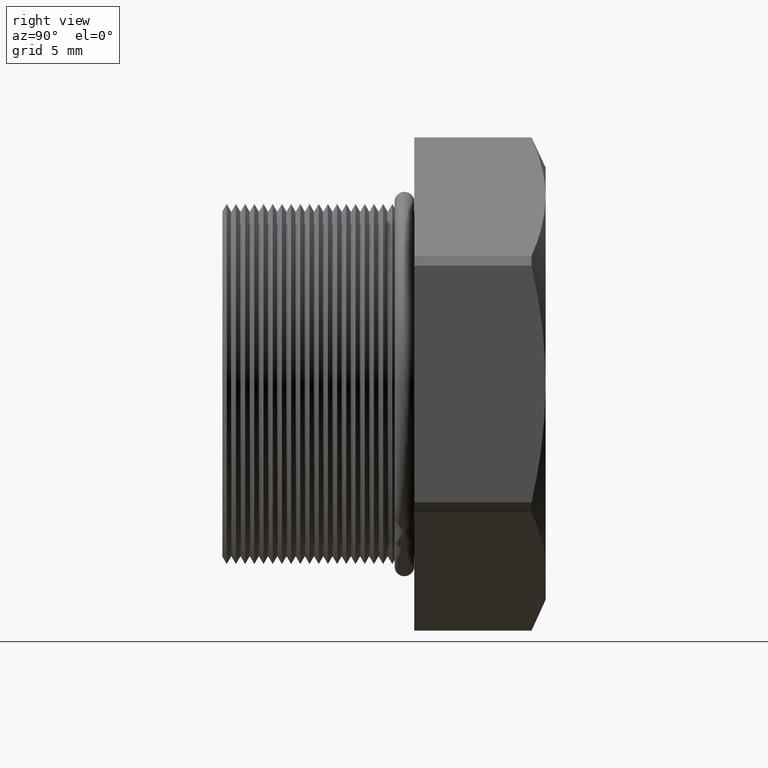
[diagram: clean part render]
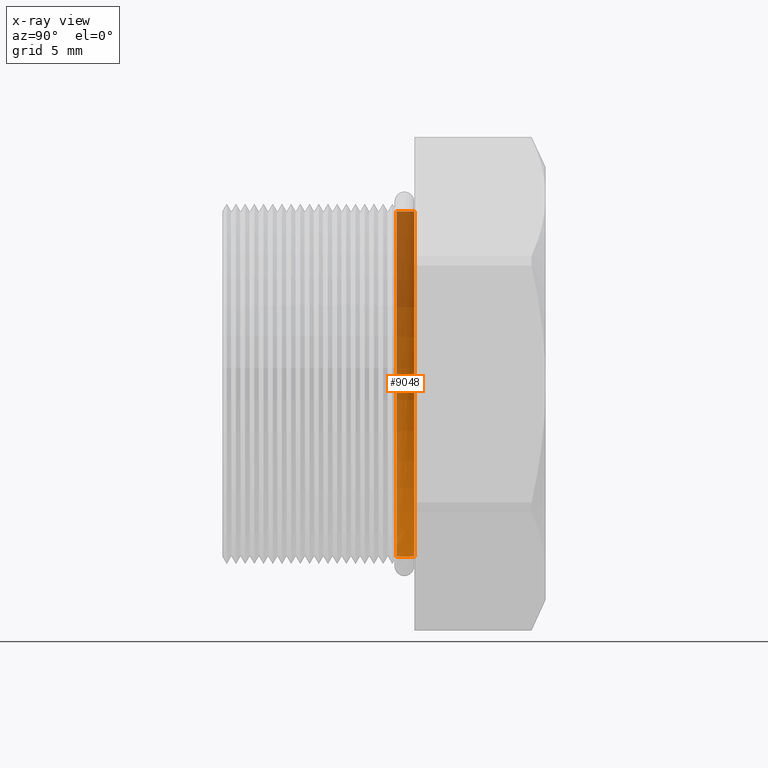
[diagram: x-ray — body ghosted, one internal face saturated and labeled with its STEP entity id]
A machine part, right view, then the same camera in x-ray: the body is ghosted and one INTERNAL B-rep face — a face not visible from any outside direction — is saturated and labeled: STEP entity #9048.
In plain terms, the highlighted cylindrical surface (partial cylindrical patch) has radius 8.001 mm, axis along (-0, -1, -0).
Its self-contained STEP definition (entity closure, byte-faithful):
#1060 = VERTEX_POINT ( 'NONE', #3832 ) ;
#1061 = VERTEX_POINT ( 'NONE', #3831 ) ;
#1093 = VERTEX_POINT ( 'NONE', #3897 ) ;
#1094 = VERTEX_POINT ( 'NONE', #3896 ) ;
#1096 = EDGE_CURVE ( 'NONE', #1094, #1061, #3895, .T. ) ;
#1151 = EDGE_CURVE ( 'NONE', #1093, #1060, #4043, .T. ) ;
#3831 = CARTESIAN_POINT ( 'NONE',  ( 3.857637417314162700E-017, 0.1355072448100088900, 0.3150000000000000000 ) ) ;
#3832 = CARTESIAN_POINT ( 'NONE',  ( 0.0000000000000000000, 0.1355072448100088900, -0.3150000000000000000 ) ) ;
#3892 = DIRECTION ( 'NONE',  ( -0.0000000000000000000, -1.000000000000000000, -0.0000000000000000000 ) ) ;
#3893 = VECTOR ( 'NONE', #3892, 39.37007874015748100 ) ;
#3894 = CARTESIAN_POINT ( 'NONE',  ( 3.857637417314162700E-017, 0.0000000000000000000, 0.3150000000000000000 ) ) ;
#3895 = LINE ( 'NONE', #3894, #3893 ) ;
#3896 = CARTESIAN_POINT ( 'NONE',  ( 3.857637417314162700E-017, 0.1675548905829479500, 0.3150000000000000000 ) ) ;
#3897 = CARTESIAN_POINT ( 'NONE',  ( 0.0000000000000000000, 0.1675548905829479500, -0.3150000000000000000 ) ) ;
#4040 = DIRECTION ( 'NONE',  ( -0.0000000000000000000, -1.000000000000000000, -0.0000000000000000000 ) ) ;
#4041 = VECTOR ( 'NONE', #4040, 39.37007874015748100 ) ;
#4042 = CARTESIAN_POINT ( 'NONE',  ( 0.0000000000000000000, 0.0000000000000000000, -0.3150000000000000000 ) ) ;
#4043 = LINE ( 'NONE', #4042, #4041 ) ;
#7612 = DIRECTION ( 'NONE',  ( 0.0000000000000000000, 0.0000000000000000000, -1.000000000000000000 ) ) ;
#7613 = DIRECTION ( 'NONE',  ( -0.0000000000000000000, -1.000000000000000000, -0.0000000000000000000 ) ) ;
#7614 = CARTESIAN_POINT ( 'NONE',  ( 0.0000000000000000000, 0.1675548905829479500, 0.0000000000000000000 ) ) ;
#7615 = AXIS2_PLACEMENT_3D ( 'NONE', #7614, #7613, #7612 ) ;
#7616 = CIRCLE ( 'NONE', #7615, 0.3150000000000000000 ) ;
#7617 = FACE_OUTER_BOUND ( 'NONE', #9044, .T. ) ;
#7618 = DIRECTION ( 'NONE',  ( 0.0000000000000000000, 0.0000000000000000000, -1.000000000000000000 ) ) ;
#7619 = DIRECTION ( 'NONE',  ( 0.0000000000000000000, -1.000000000000000000, 0.0000000000000000000 ) ) ;
#7620 = CARTESIAN_POINT ( 'NONE',  ( 0.0000000000000000000, 0.1355072448100088900, 0.0000000000000000000 ) ) ;
#7621 = AXIS2_PLACEMENT_3D ( 'NONE', #7620, #7619, #7618 ) ;
#7622 = CIRCLE ( 'NONE', #7621, 0.3150000000000000000 ) ;
#7672 = DIRECTION ( 'NONE',  ( 0.0000000000000000000, 0.0000000000000000000, -1.000000000000000000 ) ) ;
#7673 = DIRECTION ( 'NONE',  ( -0.0000000000000000000, -1.000000000000000000, -0.0000000000000000000 ) ) ;
#7674 = CARTESIAN_POINT ( 'NONE',  ( 0.0000000000000000000, 0.0000000000000000000, 0.0000000000000000000 ) ) ;
#7675 = AXIS2_PLACEMENT_3D ( 'NONE', #7674, #7673, #7672 ) ;
#7676 = CYLINDRICAL_SURFACE ( 'NONE', #7675, 0.3150000000000000000 ) ;
#9038 = ORIENTED_EDGE ( 'NONE', *, *, #9047, .T. ) ;
#9039 = ORIENTED_EDGE ( 'NONE', *, *, #1096, .F. ) ;
#9041 = ORIENTED_EDGE ( 'NONE', *, *, #9046, .F. ) ;
#9044 = EDGE_LOOP ( 'NONE', ( #9039, #9038, #9045, #9041 ) ) ;
#9045 = ORIENTED_EDGE ( 'NONE', *, *, #1151, .T. ) ;
#9046 = EDGE_CURVE ( 'NONE', #1061, #1060, #7622, .T. ) ;
#9047 = EDGE_CURVE ( 'NONE', #1094, #1093, #7616, .T. ) ;
#9048 = ADVANCED_FACE ( 'NONE', ( #7617 ), #7676, .T. ) ;